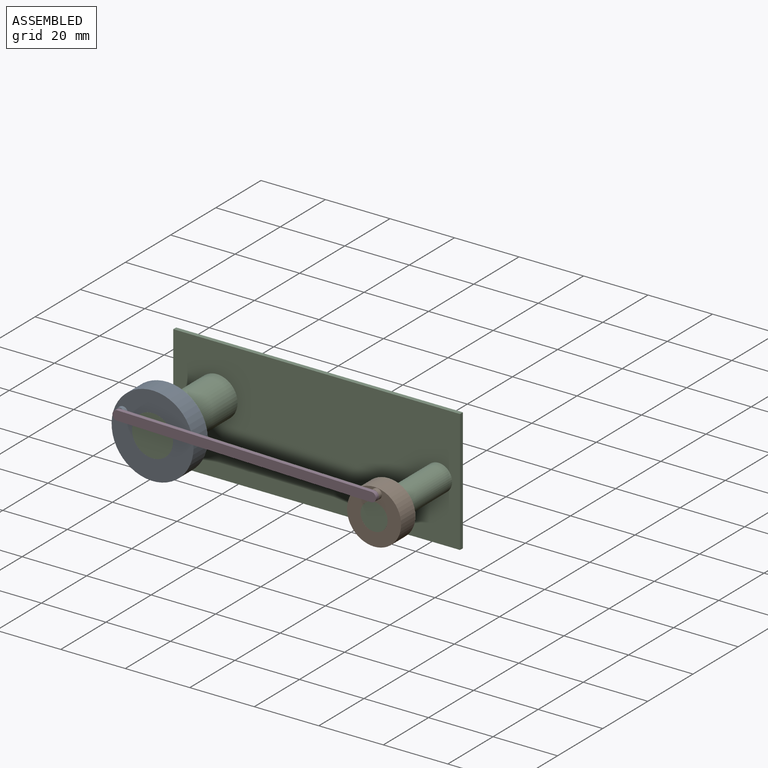
[diagram: assembled view]
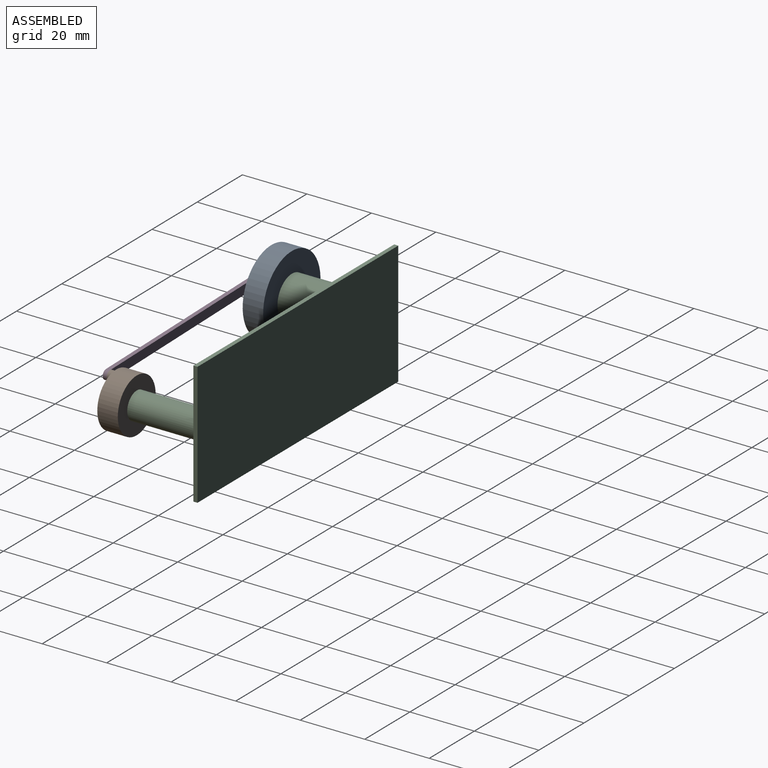
[diagram: assembled view, second angle]
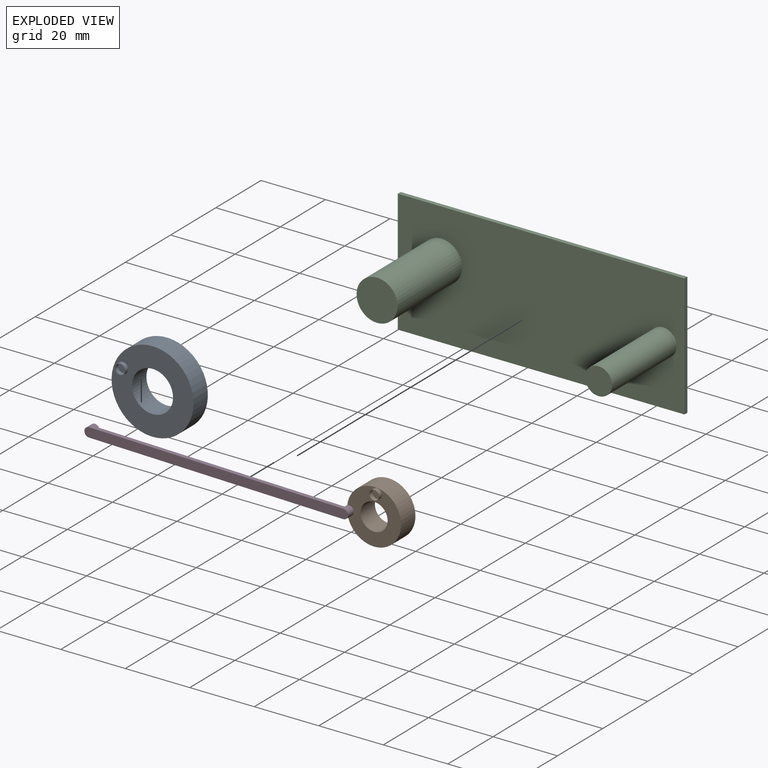
[diagram: exploded view]
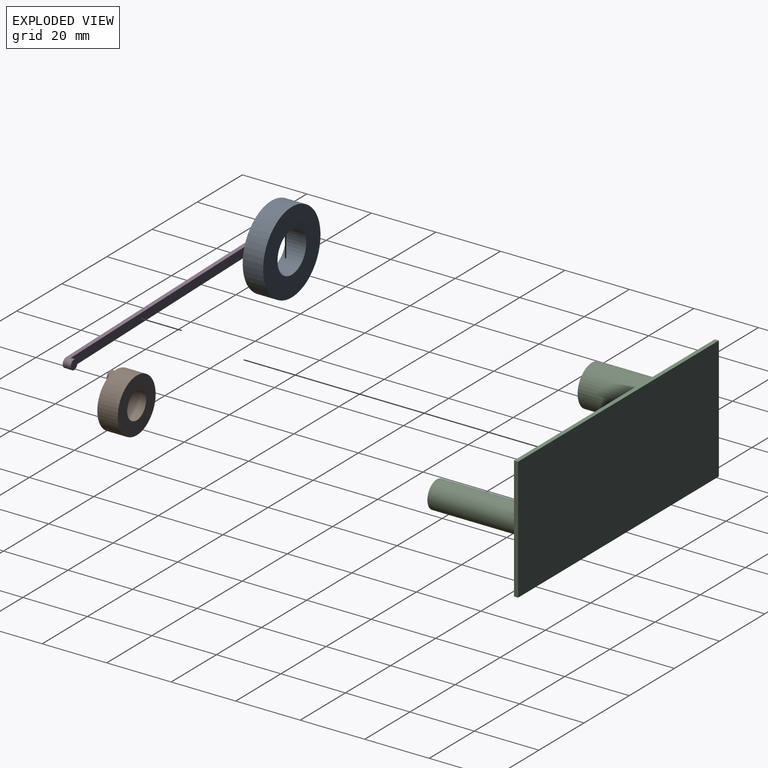
[diagram: exploded view, second angle]
ASSEMBLY  parts=4 mates=4
PART A: 8 faces, bbox 25.4x7.6x25.4 mm
  f0: cylinder r=6.35mm len=12.7mm, axis (0,1,0), area 253.4mm2, adj f2,f3
  f1: cylinder r=12.7mm len=25.4mm, axis (0,1,0), area 506.7mm2, adj f2,f3
  f2: plane 25.4x25.4mm, normal (0,-1,0), area 371.5mm2, adj f0,f1,f5
  f3: plane 25.4x25.4mm, normal (0,1,0), area 380mm2, adj f0,f1
  f4: cylinder r=1.46mm len=2.92mm, axis (0,1,0), area 11.7mm2, adj f6,f7
  f5: cylinder r=1.65mm len=3.3mm, axis (0,1,0), area 13.2mm2, adj f2,f6
  f6: plane 3.3x3.3mm, normal (0,-1,0), area 1.9mm2, adj f4,f5
  f7: plane 2.92x2.92mm, normal (0,-1,0), area 6.7mm2, adj f4
PART B: 8 faces, bbox 16.8x7.6x16.8 mm
  f0: cylinder r=4.19mm len=8.38mm, axis (0,1,0), area 167.2mm2, adj f2,f3
  f1: cylinder r=8.38mm len=16.76mm, axis (0,1,0), area 334.4mm2, adj f2,f3
  f2: plane 16.76x16.76mm, normal (0,-1,0), area 158.2mm2, adj f0,f1,f5
  f3: plane 16.76x16.76mm, normal (0,1,0), area 165.5mm2, adj f0,f1
  f4: cylinder r=1.46mm len=2.92mm, axis (0,1,0), area 11.7mm2, adj f6,f7
  f5: cylinder r=1.52mm len=3.05mm, axis (0,1,0), area 12.2mm2, adj f2,f6
  f6: plane 3.05x3.05mm, normal (0,-1,0), area 0.6mm2, adj f4,f5
  f7: plane 2.92x2.92mm, normal (0,-1,0), area 6.7mm2, adj f4
PART C: 10 faces, bbox 88.9x29.8x38.1 mm
  f0: plane 12.7x12.7mm, normal (0,-1,0), area 126.7mm2, adj f1
  f1: cylinder r=6.35mm len=28.58mm, axis (0,-1,0), area 1140.1mm2, adj f0,f9
  f2: plane 8.38x8.38mm, normal (0,-1,0), area 55.2mm2, adj f3
  f3: cylinder r=4.19mm len=28.58mm, axis (0,-1,0), area 752.5mm2, adj f2,f9
  f4: plane 38.1x1.27mm, normal (1,0,0), area 48.4mm2, adj f5,f7,f8,f9
  f5: plane 88.9x1.27mm, normal (0,0,-1), area 112.9mm2, adj f4,f6,f8,f9
  f6: plane 38.1x1.27mm, normal (-1,0,0), area 48.4mm2, adj f5,f7,f8,f9
  f7: plane 88.9x1.27mm, normal (0,0,1), area 112.9mm2, adj f4,f6,f8,f9
  f8: plane 88.9x38.1mm, normal (0,1,0), area 3387.1mm2, adj f4,f5,f6,f7
  f9: plane 88.9x38.1mm, normal (0,-1,0), area 3205.2mm2, adj f1,f3,f4,f5,f6,f7
PART D: 10 faces, bbox 81.7x2.5x5.4 mm
  f0: cylinder r=1.46mm len=2.92mm, axis (0,1,0), area 17.5mm2, adj f1,f5,f6,f7,f9
  f1: plane 2.92x2.92mm, normal (0,1,0), area 6.7mm2, adj f0
  f2: cylinder r=1.46mm len=2.92mm, axis (0,1,0), area 11.7mm2, adj f3,f4,f5
  f3: plane 2.92x1.52mm, normal (0,-1,0), area 0.1mm2, adj f2,f7,f8
  f4: plane 2.92x2.92mm, normal (0,1,0), area 6.7mm2, adj f2
  f5: plane 78.91x5.38mm, normal (0,1,0), area 223.5mm2, adj f0,f2,f6,f7,f8
  f6: plane 78.82x2.46mm, normal (-0.03,0,1), area 100.1mm2, adj f0,f5,f8,f9
  f7: plane 78.82x2.46mm, normal (0.03,0,-1), area 100.1mm2, adj f0,f3,f5,f8,f9
  f8: cylinder r=1.46mm len=2.92mm, axis (0,1,0), area 5.7mm2, adj f3,f5,f6,f7,f9
  f9: plane 81.69x5.38mm, normal (0,-1,0), area 236.8mm2, adj f0,f6,f7,f8
PLACE A rot(axis=(0,1,0),24.4deg) t=(-12.99,-41.03,-22.22)mm
PLACE B rot(axis=(0,1,0),7.4deg) t=(-7.41,-41.03,8.64)mm
PLACE C t=(-8.68,-41.03,9.67)mm fixed
PLACE D rot(axis=(0,1,0),3.1deg) t=(-7.58,-41.03,9.21)mm
MATE revolute C.f3 <-> B.f0  axis (0,-1,0) through (-15.94,-44.21,-0.62)mm
MATE revolute D.f0 <-> A.f4  axis (0,1,0) through (-93.82,-45.48,7.87)mm
MATE revolute C.f1 <-> A.f0  axis (0,-1,0) through (-84.62,-44.21,3.7)mm
MATE revolute B.f4 <-> D.f8  axis (0,1,0) through (-15.03,-45.48,6.1)mm
